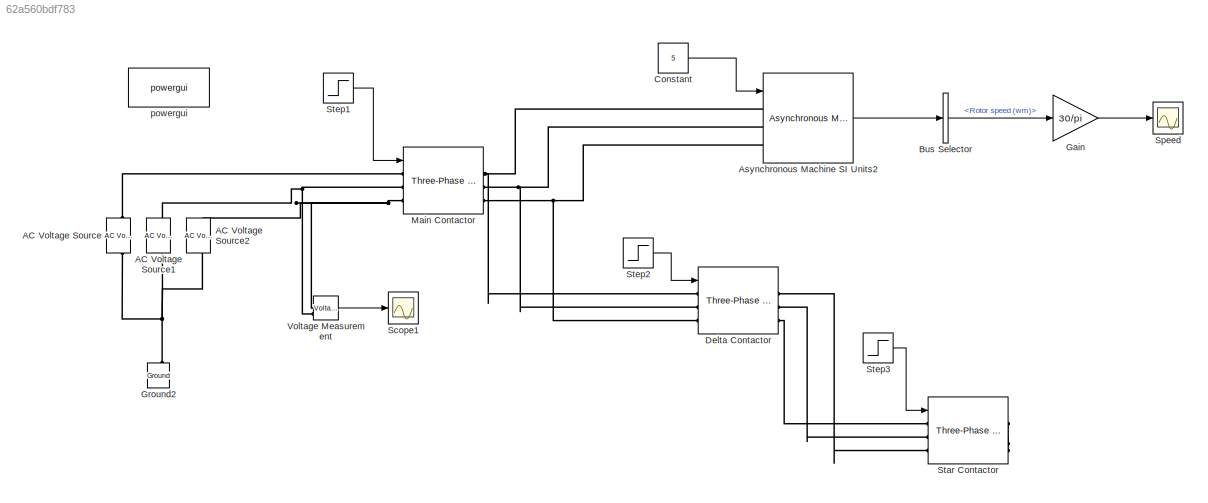
MODEL slx_62a560bdf783
KIND model
CONFIG AbsTol = auto
CONFIG EnableMultiTasking = off
CONFIG FixedStep = auto
CONFIG MaxStep = auto
CONFIG MinStep = auto
CONFIG RelTol = 1e-3
CONFIG SampleTimeConstraint = Unconstrained
CONFIG SolverName = VariableStepAuto
CONFIG StartTime = 0.0
CONFIG StopTime = 5
BLOCK [Reference] AC Voltage Source  REF=spsACVoltageSourceLib/AC Voltage Source
  LibrarySourceBlock = sps_lib/Sources/AC Voltage Source
  SourceBlock = spsACVoltageSourceLib/AC Voltage Source
  SourceType = AC Voltage Source
BLOCK [Reference] AC Voltage Source1  REF=spsACVoltageSourceLib/AC Voltage Source
  LibrarySourceBlock = sps_lib/Sources/AC Voltage Source
  SourceBlock = spsACVoltageSourceLib/AC Voltage Source
  SourceType = AC Voltage Source
BLOCK [Reference] AC Voltage Source2  REF=spsACVoltageSourceLib/AC Voltage Source
  LibrarySourceBlock = sps_lib/Sources/AC Voltage Source
  SourceBlock = spsACVoltageSourceLib/AC Voltage Source
  SourceType = AC Voltage Source
BLOCK [Reference] Asynchronous Machine SI Units2  REF=spsAsynchronousMachineSIUnitsLib/Asynchronous Machine
SI Units
  LibrarySourceBlock = sps_lib/Electrical Machines/Asynchronous Machine\nSI Units
  SourceBlock = spsAsynchronousMachineSIUnitsLib/Asynchronous Machine\nSI Units
  SourceType = Asynchronous Machine
BLOCK [BusSelector] Bus Selector
  OutputSignals = Mechanical.Rotor speed (wm)
BLOCK [Constant] Constant
  Value = 5
BLOCK [Reference] Delta Contactor  REF=spsThreePhaseBreakerLib/Three-Phase Breaker
  LibrarySourceBlock = sps_lib/Power Grid Elements/Three-Phase Breaker
  SourceBlock = spsThreePhaseBreakerLib/Three-Phase Breaker
  SourceType = Three-Phase Breaker
BLOCK [Gain] Gain
  Gain = 30/pi
BLOCK [Reference] Ground2  REF=spsGroundLib/Ground
  LibrarySourceBlock = sps_lib/Utilities/Ground
  NameLocation = right
  SourceBlock = spsGroundLib/Ground
  SourceType = Ground
BLOCK [Reference] Main Contactor  REF=spsThreePhaseBreakerLib/Three-Phase Breaker
  LibrarySourceBlock = sps_lib/Power Grid Elements/Three-Phase Breaker
  SourceBlock = spsThreePhaseBreakerLib/Three-Phase Breaker
  SourceType = Three-Phase Breaker
BLOCK [Scope] Scope1
  Floating = off
  NumInputPorts = 1
  ScopeSpecificationString = Simulink.scopes.TimeScopeBlockCfg('CurrentConfiguration', extmgr.ConfigurationSet(extmgr.Configuration('Core','General UI',true),extmgr.Configuration('Core','Source UI',true),extmgr.Configuration('Sources','WiredSimulink',true,'DataLoggingVariableName','ScopeData1'),extmgr.Configuration('Visuals','Time Domain',true,'SerializedDisplays',{struct('MinYLimReal','-27974554898551754325597355562530241411...<+3887ch>
BLOCK [Scope] Speed
  Floating = off
  NumInputPorts = 1
  ScopeSpecificationString = Simulink.scopes.TimeScopeBlockCfg('CurrentConfiguration', extmgr.ConfigurationSet(extmgr.Configuration('Core','General UI',true),extmgr.Configuration('Core','Source UI',true),extmgr.Configuration('Sources','WiredSimulink',true),extmgr.Configuration('Visuals','Time Domain',true,'SerializedDisplays',{struct('MinYLimReal','-27974554898551754325597355562530241411772614733276556974294688103207249668187...<+3833ch>
BLOCK [Reference] Star Contactor  REF=spsThreePhaseBreakerLib/Three-Phase Breaker
  LibrarySourceBlock = sps_lib/Power Grid Elements/Three-Phase Breaker
  SourceBlock = spsThreePhaseBreakerLib/Three-Phase Breaker
  SourceType = Three-Phase Breaker
BLOCK [Step] Step1
  After = 10
  SampleTime = 0
BLOCK [Step] Step2
  After = 10
  SampleTime = 0
BLOCK [Step] Step3
  After = 10
  SampleTime = 0
BLOCK [Reference] Voltage Measurement  REF=spsVoltageMeasurementLib/Voltage Measurement
  LibrarySourceBlock = sps_lib/Sensors and Measurements/Voltage Measurement
  SourceBlock = spsVoltageMeasurementLib/Voltage Measurement
  SourceType = Voltage Measurement
  UserDataPersistent = on
BLOCK [Reference] powergui  REF=sps_lib/powergui
  Priority = 1
  SourceBlock = sps_lib/powergui
  SourceType = PSB option menu block
LINE Asynchronous Machine SI Units2:1 -> Bus Selector:1
LINE Bus Selector:1 -> Gain:1
LINE Constant:1 -> Asynchronous Machine SI Units2:1
LINE Gain:1 -> Speed:1
LINE Step1:1 -> Main Contactor:1
LINE Step2:1 -> Delta Contactor:1
LINE Step3:1 -> Star Contactor:1
LINE Voltage Measurement:1 -> Scope1:1
PNET net1: AC Voltage Source1:LConn1 -- AC Voltage Source2:LConn1 -- AC Voltage Source:LConn1 -- Ground2:LConn1
PNET net2: AC Voltage Source1:RConn1 -- Main Contactor:LConn2 -- Voltage Measurement:LConn2
PNET net3: AC Voltage Source2:RConn1 -- Main Contactor:LConn3 -- Voltage Measurement:LConn1
PLINE AC Voltage Source:RConn1 -- Main Contactor:LConn1
PNET net4: Asynchronous Machine SI Units2:LConn1 -- Delta Contactor:LConn1 -- Main Contactor:RConn1
PNET net5: Asynchronous Machine SI Units2:LConn2 -- Delta Contactor:LConn2 -- Main Contactor:RConn2
PNET net6: Asynchronous Machine SI Units2:LConn3 -- Delta Contactor:LConn3 -- Main Contactor:RConn3
PLINE Delta Contactor:RConn1 -- Star Contactor:LConn3
PLINE Delta Contactor:RConn2 -- Star Contactor:LConn2
PLINE Delta Contactor:RConn3 -- Star Contactor:LConn1
PNET net7: Star Contactor:RConn1 -- Star Contactor:RConn2 -- Star Contactor:RConn3
note: PNET lines group multi-terminal physical nets as a canonical sorted terminal list (undirected conserving connections); 2-terminal nets keep the pairwise PLINE form
